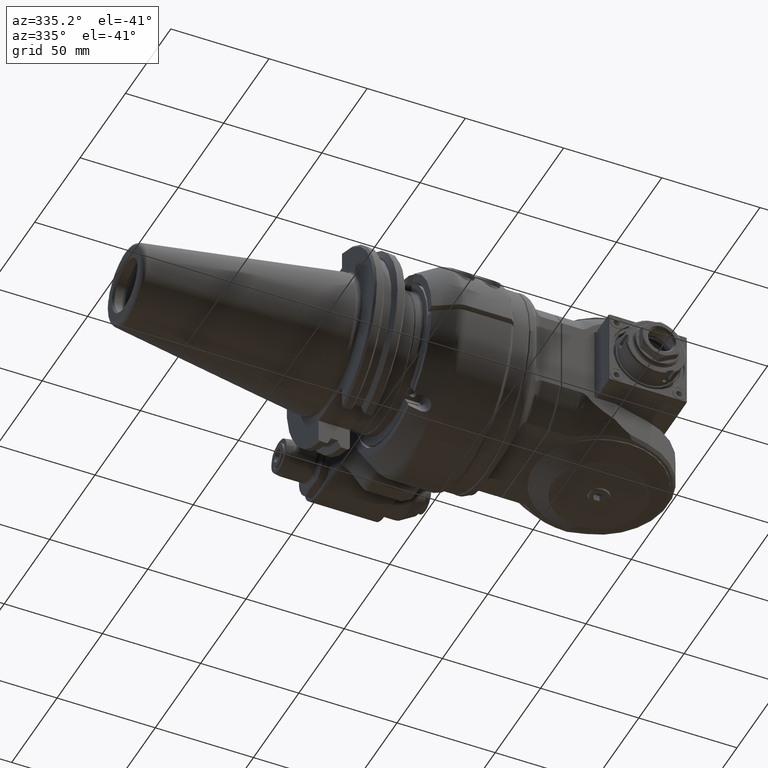
[diagram: clean part render]
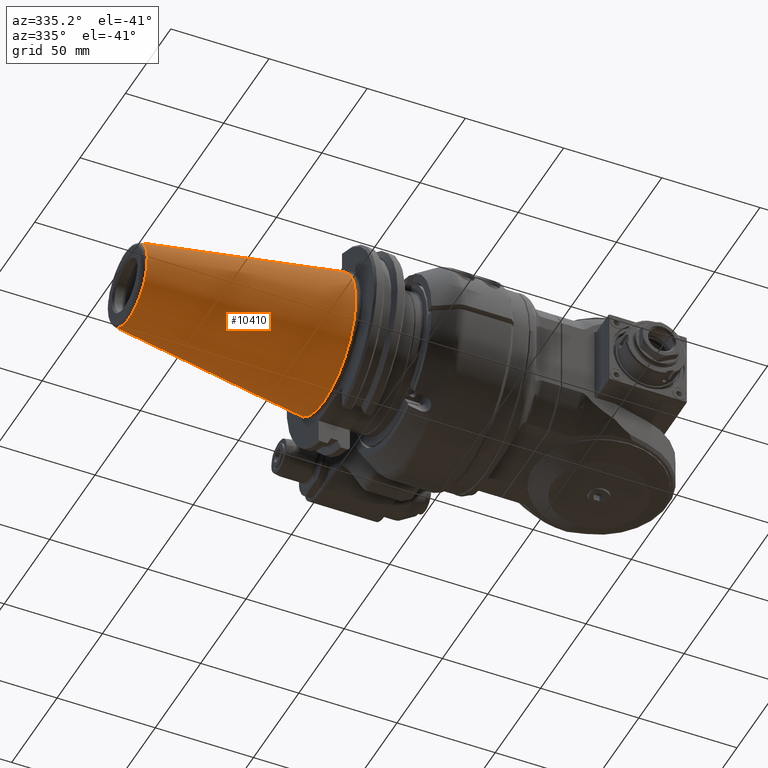
[diagram: same view with one face highlighted and labeled with its STEP entity id]
A machine part, auxiliary view. The second image highlights one B-rep face of the part: STEP entity #10410.
In plain terms, the highlighted conical surface has half-angle 8.297 deg.
Its self-contained STEP definition (entity closure, byte-faithful):
#776=CONICAL_SURFACE('',#11274,27.67265681028,0.144812411498922);
#1095=FACE_OUTER_BOUND('',#1756,.T.);
#1756=EDGE_LOOP('',(#8067,#8068,#8069,#8070,#8071,#8072));
#2401=CIRCLE('',#11272,34.925);
#2402=CIRCLE('',#11273,34.925);
#2403=CIRCLE('',#11275,20.42031362057);
#2404=CIRCLE('',#11276,20.42031362057);
#3093=LINE('',#57688,#3836);
#3836=VECTOR('',#13092,27.67265681028);
#4679=VERTEX_POINT('',#57681);
#4680=VERTEX_POINT('',#57682);
#4681=VERTEX_POINT('',#57687);
#4682=VERTEX_POINT('',#57689);
#5923=EDGE_CURVE('',#4679,#4680,#2401,.T.);
#5925=EDGE_CURVE('',#4680,#4679,#2402,.T.);
#5926=EDGE_CURVE('',#4679,#4681,#3093,.T.);
#5927=EDGE_CURVE('',#4682,#4681,#2403,.T.);
#5928=EDGE_CURVE('',#4681,#4682,#2404,.T.);
#8067=ORIENTED_EDGE('',*,*,#5923,.F.);
#8068=ORIENTED_EDGE('',*,*,#5926,.T.);
#8069=ORIENTED_EDGE('',*,*,#5927,.F.);
#8070=ORIENTED_EDGE('',*,*,#5928,.F.);
#8071=ORIENTED_EDGE('',*,*,#5926,.F.);
#8072=ORIENTED_EDGE('',*,*,#5925,.F.);
#10410=ADVANCED_FACE('',(#1095),#776,.T.);
#11272=AXIS2_PLACEMENT_3D('',#57683,#13085,#13086);
#11273=AXIS2_PLACEMENT_3D('',#57685,#13088,#13089);
#11274=AXIS2_PLACEMENT_3D('',#57686,#13090,#13091);
#11275=AXIS2_PLACEMENT_3D('',#57690,#13093,#13094);
#11276=AXIS2_PLACEMENT_3D('',#57691,#13095,#13096);
#13085=DIRECTION('center_axis',(1.,0.,0.));
#13086=DIRECTION('ref_axis',(0.,8.524644438195E-10,-1.));
#13088=DIRECTION('center_axis',(1.,0.,0.));
#13089=DIRECTION('ref_axis',(0.,8.524644438195E-10,-1.));
#13090=DIRECTION('center_axis',(1.,0.,0.));
#13091=DIRECTION('ref_axis',(0.,8.524644438195E-10,-1.));
#13092=DIRECTION('',(-0.98953299358046,1.23016439845378E-10,-0.144306807239621));
#13093=DIRECTION('center_axis',(-1.,0.,0.));
#13094=DIRECTION('ref_axis',(0.,8.524644438195E-10,-1.));
#13095=DIRECTION('center_axis',(-1.,0.,0.));
#13096=DIRECTION('ref_axis',(0.,8.524644438195E-10,-1.));
#57681=CARTESIAN_POINT('',(-85.9999999999999,-2.9772320700396E-8,34.925));
#57682=CARTESIAN_POINT('',(-85.9999999999996,2.97723164233181E-8,-34.9250000000012));
#57683=CARTESIAN_POINT('Origin',(-85.9999999999999,0.,0.));
#57685=CARTESIAN_POINT('Origin',(-85.9999999999999,0.,0.));
#57686=CARTESIAN_POINT('Origin',(-135.73038350905,0.,0.));
#57687=CARTESIAN_POINT('',(-185.460767018099,-1.74075937939408E-8,20.4203136205638));
#57688=CARTESIAN_POINT('',(-135.73038350905,-2.35899593857063E-8,27.67265681028));
#57689=CARTESIAN_POINT('',(-185.4607670181,20.42031362057,1.74075937939461E-8));
#57690=CARTESIAN_POINT('Origin',(-185.4607670181,0.,0.));
#57691=CARTESIAN_POINT('Origin',(-185.4607670181,0.,0.));